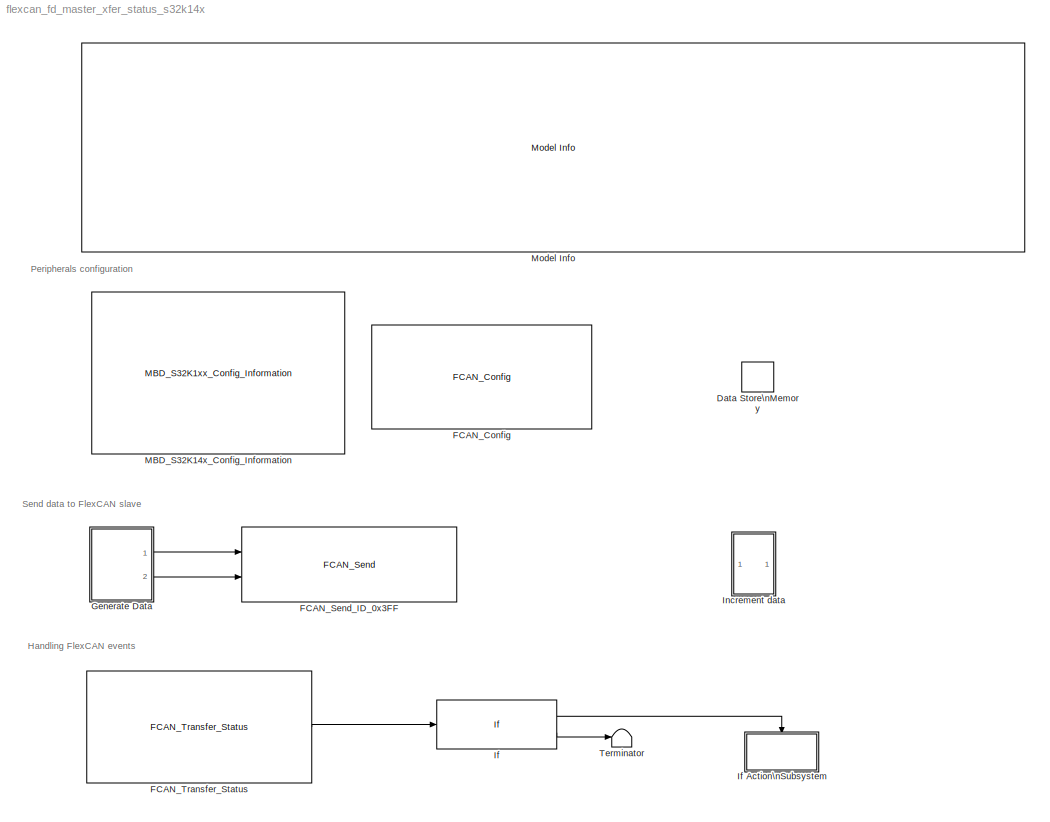
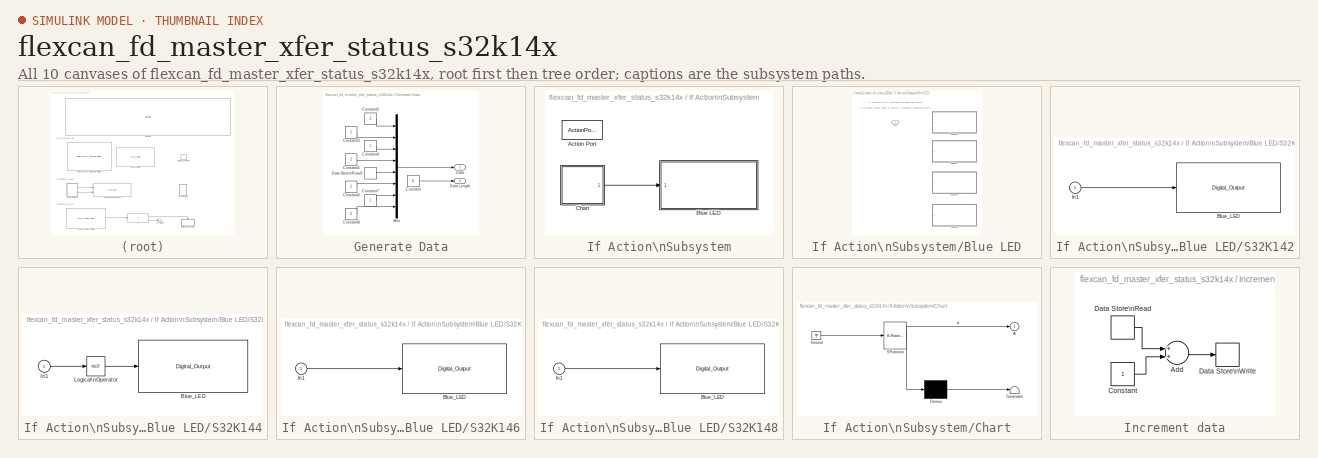
[diagram: thumbnail index - all 10 canvases of the model, root first then tree order]
MODEL flexcan_fd_master_xfer_status_s32k14x
KIND model
CONFIG InitFcn = mbd_s32k_consistency_checks(bdroot(gcs));
CONFIG PreLoadFcn = mbd_s32k_examples_preload_cbk;
BLOCK [DataStoreMemory] Data Store\nMemory
  DataStoreName = data
  OutDataTypeStr = uint8
  ReadBeforeWriteMsg = warning
  SID = 120
  ShowAdditionalParam = off
  WriteAfterReadMsg = warning
  WriteAfterWriteMsg = warning
BLOCK [Reference] FCAN_Config  REF=mbd_s32k1xx_ec_toolbox/Communication Blocks/CAN Blocks/FCAN_Config
  Ports = []
  Priority = 1
  SID = 27
  SourceBlock = mbd_s32k1xx_ec_toolbox/Communication Blocks/CAN Blocks/FCAN_Config
  SourceType = fcan_s32k_config
  bitrate = 500
  bitrate_adv_opts = off
  can_cbt_presdiv = 3
  can_cbt_propseg = 27
  can_cbt_pseg1 = 5
  can_cbt_pseg2 = 5
  can_cbt_rjw = 3
  can_clk_src = Peripheral clock
  can_fd_enable = on
  can_fifo_id_filter = {'0x0', '0x0', '0x0', '0x0', '0x0', '0x0', '0x0', '0x0'}
  can_fifo_id_filter_extended = off
  can_fifo_id_filter_remote = off
  can_fifo_id_format = A
  can_idfilter_extendedid = off
  can_idfilter_id1 = 0
  can_idfilter_id2 = 0
  can_idfilter_remoteframe = off
  can_idfilter_type = Match exact
  can_instance = 0
  can_match_timeout = 1
  can_max_num_mb = 16
  can_mode = Normal mode
  can_multiple_matches_en = off
  can_num_id_filters = 8
  can_num_matches = 1
  can_payload = 8
  can_payloadfilter_dlchigh = 0
  can_payloadfilter_dlclow = 0
  can_payloadfilter_enable = off
  can_payloadfilter_payload1_b0 = 0
  can_payloadfilter_payload1_b1 = 0
  can_payloadfilter_payload1_b2 = 0
  can_payloadfilter_payload1_b3 = 0
  can_payloadfilter_payload1_b4 = 0
  can_payloadfilter_payload1_b5 = 0
  can_payloadfilter_payload1_b6 = 0
  can_payloadfilter_payload1_b7 = 0
  can_payloadfilter_payload2_b0 = 0
  can_payloadfilter_payload2_b1 = 0
  can_payloadfilter_payload2_b2 = 0
  can_payloadfilter_payload2_b3 = 0
  can_payloadfilter_payload2_b4 = 0
  can_payloadfilter_payload2_b5 = 0
  can_payloadfilter_payload2_b6 = 0
  can_payloadfilter_payload2_b7 = 0
  can_payloadfilter_type = Match exact
  can_pn_enable = off
  can_presdiv = 7
  can_propseg = 7
  can_pseg1 = 6
  can_pseg2 = 3
  can_rjw = 3
  can_rx = PTE4: [CAN0_RX | CAN Rx channel]
  can_rxfifo_enable = off
  can_timeout_en = off
  can_tx = PTE5: [CAN0_TX | CAN Tx Channel]
  can_wakeup_match = off
  can_wakeup_timeout = off
  show_adv_opts = on
BLOCK [Reference] FCAN_Send_ID_0x3FF  REF=mbd_s32k1xx_ec_toolbox/Communication Blocks/CAN Blocks/FCAN_Send
  Ports = [2]
  Priority = 2
  SID = 28
  SourceBlock = mbd_s32k1xx_ec_toolbox/Communication Blocks/CAN Blocks/FCAN_Send
  SourceType = fcan_s32k_send
  can_enable_brs = off
  can_extended_id = off
  can_fd_enable = on
  can_fd_padding = 0
  can_id = 3FF
  can_instance = 0
  can_is_remote = off
  can_mb_idx = 15
  can_mode = Non-blocking
  can_timeout_ms = 0
  show_adv_opts = on
BLOCK [Reference] FCAN_Transfer_Status  REF=mbd_s32k1xx_ec_toolbox/Communication Blocks/CAN Blocks/FCAN_Transfer_Status
  Ports = [0, 1]
  SID = 54
  SourceBlock = mbd_s32k1xx_ec_toolbox/Communication Blocks/CAN Blocks/FCAN_Transfer_Status
  SourceType = fcan_s32k_transfer_status
  can_instance = 0
  can_mb_idx = 15
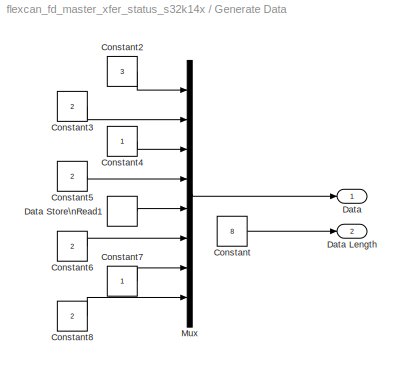
BLOCK [SubSystem] Generate Data
  Ports = [0, 2]
  RequestExecContextInheritance = off
  SID = 30
  Variant = off
BLOCK [Constant] Generate Data/Constant
  OutDataTypeStr = uint8
  SID = 31
  Value = 8
BLOCK [Constant] Generate Data/Constant2
  OutDataTypeStr = uint8
  SID = 32
  Value = 3
BLOCK [Constant] Generate Data/Constant3
  OutDataTypeStr = uint8
  SID = 33
  Value = 2
BLOCK [Constant] Generate Data/Constant4
  OutDataTypeStr = uint8
  SID = 34
BLOCK [Constant] Generate Data/Constant5
  OutDataTypeStr = uint8
  SID = 35
  Value = 2
BLOCK [Constant] Generate Data/Constant6
  OutDataTypeStr = uint8
  SID = 36
  Value = 2
BLOCK [Constant] Generate Data/Constant7
  OutDataTypeStr = uint8
  SID = 37
BLOCK [Constant] Generate Data/Constant8
  OutDataTypeStr = uint8
  SID = 38
  Value = 2
BLOCK [Outport] Generate Data/Data
  IconDisplay = Port number
  SID = 41
BLOCK [Outport] Generate Data/Data Length
  IconDisplay = Port number
  Port = 2
  SID = 42
BLOCK [DataStoreRead] Generate Data/Data Store\nRead1
  DataStoreName = data
  Ports = [0, 1]
  SID = 119
BLOCK [Mux] Generate Data/Mux
  DisplayOption = bar
  Inputs = 8
  Ports = [8, 1]
  SID = 40
BLOCK [If] If
  IfExpression = u1 == 1
  Ports = [1, 2]
  SID = 55
BLOCK [SubSystem] If Action\nSubsystem
  Ports = [0, 0, 0, 0, 0, 0, 0, 1]
  RequestExecContextInheritance = off
  SID = 60
  TreatAsAtomicUnit = on
  Variant = off
BLOCK [ActionPort] If Action\nSubsystem/Action Port
  SID = 62
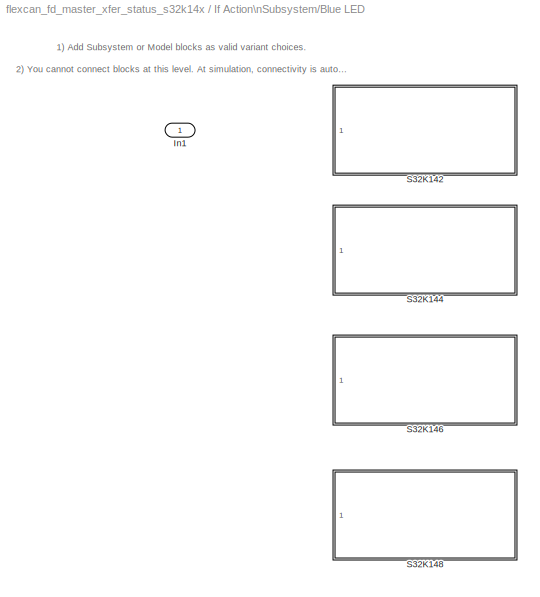
BLOCK [SubSystem] If Action\nSubsystem/Blue LED
  Ports = [1]
  RequestExecContextInheritance = off
  SID = 103
  Variant = on
BLOCK [Inport] If Action\nSubsystem/Blue LED/In1
  IconDisplay = Port number
  SID = 104
BLOCK [SubSystem] If Action\nSubsystem/Blue LED/S32K142
  Ports = [1]
  RequestExecContextInheritance = off
  SID = 105
  Variant = off
  VariantControl = VSS_S32k142
BLOCK [Reference] If Action\nSubsystem/Blue LED/S32K142/Blue_LED  REF=mbd_s32k1xx_ec_toolbox/GPIO Blocks/Digital_Output
  Ports = [1]
  SID = 107
  SourceBlock = mbd_s32k1xx_ec_toolbox/GPIO Blocks/Digital_Output
  SourceType = gpio_s32k_output
  drive_strength = Low
  gpio_pin = PTD0: [PTD0 | Port D I/O]
  init_val = Low
BLOCK [Inport] If Action\nSubsystem/Blue LED/S32K142/In1
  IconDisplay = Port number
  SID = 106
BLOCK [SubSystem] If Action\nSubsystem/Blue LED/S32K144
  Ports = [1]
  RequestExecContextInheritance = off
  SID = 108
  Variant = off
  VariantControl = VSS_S32k144
BLOCK [Reference] If Action\nSubsystem/Blue LED/S32K144/Blue_LED  REF=mbd_s32k1xx_ec_toolbox/GPIO Blocks/Digital_Output
  Ports = [1]
  SID = 110
  SourceBlock = mbd_s32k1xx_ec_toolbox/GPIO Blocks/Digital_Output
  SourceType = gpio_s32k_output
  drive_strength = Low
  gpio_pin = PTD0: [PTD0 | Port D I/O]
  init_val = Low
BLOCK [Inport] If Action\nSubsystem/Blue LED/S32K144/In1
  IconDisplay = Port number
  SID = 109
BLOCK [Logic] If Action\nSubsystem/Blue LED/S32K144/Logical\nOperator
  AllPortsSameDT = off
  Operator = NOT
  OutDataTypeStr = boolean
  Ports = [1, 1]
  SID = 111
BLOCK [SubSystem] If Action\nSubsystem/Blue LED/S32K146
  Ports = [1]
  RequestExecContextInheritance = off
  SID = 112
  Variant = off
  VariantControl = VSS_S32k146
BLOCK [Reference] If Action\nSubsystem/Blue LED/S32K146/Blue_LED  REF=mbd_s32k1xx_ec_toolbox/GPIO Blocks/Digital_Output
  Ports = [1]
  SID = 114
  SourceBlock = mbd_s32k1xx_ec_toolbox/GPIO Blocks/Digital_Output
  SourceType = gpio_s32k_output
  drive_strength = Low
  gpio_pin = PTD0: [PTD0 | Port D I/O]
  init_val = Low
BLOCK [Inport] If Action\nSubsystem/Blue LED/S32K146/In1
  IconDisplay = Port number
  SID = 113
BLOCK [SubSystem] If Action\nSubsystem/Blue LED/S32K148
  Ports = [1]
  RequestExecContextInheritance = off
  SID = 115
  Variant = off
  VariantControl = VSS_S32k148
BLOCK [Reference] If Action\nSubsystem/Blue LED/S32K148/Blue_LED  REF=mbd_s32k1xx_ec_toolbox/GPIO Blocks/Digital_Output
  Ports = [1]
  SID = 117
  SourceBlock = mbd_s32k1xx_ec_toolbox/GPIO Blocks/Digital_Output
  SourceType = gpio_s32k_output
  drive_strength = Low
  gpio_pin = PTE23: [PTE23 | Port E I/O]
  init_val = Low
BLOCK [Inport] If Action\nSubsystem/Blue LED/S32K148/In1
  IconDisplay = Port number
  SID = 116
BLOCK [SubSystem] If Action\nSubsystem/Chart
  ErrorFcn = Stateflow.Translate.translate
  PermitHierarchicalResolution = ExplicitOnly
  Ports = [0, 1]
  RequestExecContextInheritance = off
  SFBlockType = Chart
  SID = 65
  TreatAsAtomicUnit = on
  Variant = off
BLOCK [Outport] If Action\nSubsystem/Chart/ A
  IconDisplay = Port number
  SID = 65::6
BLOCK [Demux] If Action\nSubsystem/Chart/ Demux 
  Outputs = 1
  Ports = [1, 1]
  SID = 65::44
BLOCK [Ground] If Action\nSubsystem/Chart/ Ground 
  SID = 65::46
BLOCK [S-Function] If Action\nSubsystem/Chart/ SFunction 
  EnableBusSupport = off
  FunctionName = sf_sfun
  PortCounts = [1 2]
  Ports = [1, 2]
  SFcnIsStateOwnerBlock = off
  SFunctionDeploymentMode = off
  SID = 65::43
  Tag = Stateflow S-Function flexcan_fd_master_xfer_status_s32k14x 5
BLOCK [Terminator] If Action\nSubsystem/Chart/ Terminator 
  SID = 65::45
BLOCK [SubSystem] Increment data
  Ports = []
  RequestExecContextInheritance = off
  SID = 121
  Variant = off
BLOCK [Sum] Increment data/Add
  InputSameDT = off
  OutDataTypeStr = Inherit: Inherit via internal rule
  Ports = [2, 1]
  SID = 122
  SaturateOnIntegerOverflow = off
BLOCK [Constant] Increment data/Constant
  OutDataTypeStr = uint8
  SID = 123
BLOCK [DataStoreRead] Increment data/Data Store\nRead
  DataStoreName = data
  Ports = [0, 1]
  SID = 124
BLOCK [DataStoreWrite] Increment data/Data Store\nWrite
  DataStoreName = data
  Ports = [1]
  SID = 125
BLOCK [Reference] MBD_S32K14x_Config_Information  REF=mbd_s32k1xx_ec_toolbox/MBD_S32K1xx_Config_Information
  ADC_PcrCheckEnDis = on
  AMMCLIB_PcrCheckEnDis = on
  CMP_PcrCheckEnDis = on
  CSEc_PcrCheckEnDis = on
  ConfigParams_PcrCheckEnDis = on
  FM_PcrCheckEnDis = on
  FTM_Dual_Edge_Inputs_PcrCheckEnDis = on
  FTM_Hall_Sensor_Inputs_PcrCheckEnDis = on
  FTM_Input_Edge_Inputs_PcrCheckEnDis = on
  FTM_PWM_PcrCheckEnDis = on
  FTM_Quadrature_Inputs_PcrCheckEnDis = on
  FlexCAN_PcrCheckEnDis = on
  FlexIO_PcrCheckEnDis = on
  GPIO_InputPcrCheckEnDis = on
  GPIO_OutputPcrCheckEnDis = on
  LIN_PcrCheckEnDis = on
  LPI2C_PcrCheckEnDis = on
  LPSPI_PcrCheckEnDis = on
  LPTMR_PcrCheckEnDis = on
  LPUART_PcrCheckEnDis = on
  ModelRef_PcrCheckEnDis = on
  PDB0_PcrCheckEnDis = on
  PIT_PcrCheckEnDis = on
  Ports = []
  Profile_PcrCheckEnDis = on
  RTC_PcrCheckEnDis = on
  SBC_PcrCheckEnDis = on
  SID = 43
  SourceBlock = mbd_s32k1xx_ec_toolbox/MBD_S32K1xx_Config_Information
  SourceType = MBDTBX_EC_S32K
  WDOG_PcrCheckEnDis = on
  config_params = []
  disp_str = Target : S32K144-64KB_SRAM\nPackage : 100-pin\nSystem clock : 80 MHz\nXTAL clock : External 8 MHz\nCompiler : IAR\nTarget Type : FLASH\nDownload Code after build : off\nStep Tick Interrupt Priority : 15
  ds_import_enable = on
  eDMA_PcrCheckEnDis = on
  gcc_target_assemble_opts = -mcpu=cortex-m4 -mthumb -mfloat-abi=hard -mfpu=fpv4-sp-d16 -g
  gcc_target_compile_opts = -mcpu=cortex-m4 -mthumb -mfloat-abi=hard -mfpu=fpv4-sp-d16 -O1 -g -gstrict-dwarf
  gcc_target_default_lcf = on
  gcc_target_link_opts = -mcpu=cortex-m4 -mthumb -mfloat-abi=hard -mfpu=fpv4-sp-d16
  gcc_target_user_lcf = S32K144_64_flash.ld
  ghs_target_assemble_opts = -cpu=cortexm4f -fpu=vfpv4_d16
  ghs_target_compile_opts = -cpu=cortexm4f -thumb -DARM_MATH_CM4 -fpu=vfpv4_d16 -fsingle -Ogeneral -Wundef -Wimplicit-int -Wshadow -Wtrigraphs --no_commons --gnu_asm -gnu99 -gdwarf-2 -G
  ghs_target_default_lcf = off
  ghs_target_link_opts = -cpu=cortexm4f -thumb -fpu=vfpv4_d16
  ghs_target_user_lcf = S32K144_64_flash.ld
  iar_target_assemble_opts = --cpu Cortex-M4F --thumb --fpu VFPv4_sp
  iar_target_compile_opts = --cpu=Cortex-M4F --thumb --fpu=VFPv4_sp -Ol -e --debug --dlib_config normal
  iar_target_default_lcf = off
  iar_target_link_opts = --no_exceptions --vfe --inline
  iar_target_user_lcf = S32K144_64_flash.icf
  mbdt_ver = 0
  mcu_steptick_prio = 15
  mcu_steptick_timer = LPIT Channel 0
  mcu_system_clock_freq = 80
  mcu_target_name = S32K144
  mcu_target_package = 100-LQFP
  mcu_target_sram_size = 64KB
  mcu_xtal_freq = External 8
  pil_download_enable = off
  pil_download_rate = 57600
  pil_opensda_drive = Custom
  pil_opensda_drive_custom = D
  pil_uart_instance = 0
  pil_uart_rx = PTA2: [LPUART0_RX | Receive]
  pil_uart_tx = PTA3: [LPUART0_TX | Transmit]
  rbl_com_port = Custom
  rbl_com_port_custom = COM1
  rbl_download_enable = off
  rbl_download_interface = OpenSDA
  rbl_restart_request = off
  rbl_start_delay = 5000000
  target_compiler = GCC
  target_memory = FLASH
BLOCK [Reference] Model Info  REF=simulink/Model-Wide\nUtilities/Model Info
  DisplayStringWithTags = Model Name: %<ModelName>\n\nDescription: %<Description>
  Frame = off
  HorizontalTextAlignment = Left
  LeftAlignmentValue = 0.02
  MaskDisplayString = Model Name: flexcan_fd_master_xfer_status_s32k14x\\n\\nDescription: This model tests FlexCAN communication using CAN with Flexible Data-Rate.\\nThe FlexCAN Master sends on each step a message with ID 0x3FF to the slave.\\nWhen a transfer using the specified MB is in progress the Blue LED is toggled.\\n\\nHW prerequisite:\\n- S32K142EVB-Q100 / S32K144EVB-Q100 / S32K146EVB-Q144 / S32K148EVB-Q144\\n-...<+261ch>
  Ports = []
  SID = 70
  SourceBlock = simulink/Model-Wide\nUtilities/Model Info
  SourceProductBaseCode = SL
  SourceProductName = Simulink
  SourceType = CMBlock
BLOCK [Terminator] Terminator
  SID = 66
ANNOTATION (root): Handling FlexCAN events
ANNOTATION (root): Peripherals configuration
ANNOTATION (root): Send data to FlexCAN slave
ANNOTATION If Action\nSubsystem/Blue LED: \n \n 1) Add Subsystem or Model blocks as valid variant choices. \n 2) You cannot connect blocks at this level. At simulation, connectivity is automatically \n determined, based on the active variant and port name matching.
LINE FCAN_Transfer_Status:1 -> If:1
LINE Generate Data/Constant2:1 -> Generate Data/Mux:1
LINE Generate Data/Constant3:1 -> Generate Data/Mux:2
LINE Generate Data/Constant4:1 -> Generate Data/Mux:3
LINE Generate Data/Constant5:1 -> Generate Data/Mux:4
LINE Generate Data/Constant6:1 -> Generate Data/Mux:6
LINE Generate Data/Constant7:1 -> Generate Data/Mux:7
LINE Generate Data/Constant8:1 -> Generate Data/Mux:8
LINE Generate Data/Constant:1 -> Generate Data/Data Length:1
LINE Generate Data/Data Store\nRead1:1 -> Generate Data/Mux:5
LINE Generate Data/Mux:1 -> Generate Data/Data:1
LINE Generate Data:1 -> FCAN_Send_ID_0x3FF:1
LINE Generate Data:2 -> FCAN_Send_ID_0x3FF:2
LINE If Action\nSubsystem/Blue LED/S32K142/In1:1 -> If Action\nSubsystem/Blue LED/S32K142/Blue_LED:1
LINE If Action\nSubsystem/Blue LED/S32K144/In1:1 -> If Action\nSubsystem/Blue LED/S32K144/Logical\nOperator:1
LINE If Action\nSubsystem/Blue LED/S32K144/Logical\nOperator:1 -> If Action\nSubsystem/Blue LED/S32K144/Blue_LED:1
LINE If Action\nSubsystem/Blue LED/S32K146/In1:1 -> If Action\nSubsystem/Blue LED/S32K146/Blue_LED:1
LINE If Action\nSubsystem/Blue LED/S32K148/In1:1 -> If Action\nSubsystem/Blue LED/S32K148/Blue_LED:1
LINE If Action\nSubsystem/Chart/ Demux :1 -> If Action\nSubsystem/Chart/ Terminator :1
LINE If Action\nSubsystem/Chart/ Ground :1 -> If Action\nSubsystem/Chart/ SFunction :1
LINE If Action\nSubsystem/Chart/ SFunction :1 -> If Action\nSubsystem/Chart/ Demux :1
LINE If Action\nSubsystem/Chart/ SFunction :2 -> If Action\nSubsystem/Chart/ A:1
LINE If Action\nSubsystem/Chart:1 -> If Action\nSubsystem/Blue LED:1
LINE If:1 -> If Action\nSubsystem:ifaction
LINE If:2 -> Terminator:1
LINE Increment data/Add:1 -> Increment data/Data Store\nWrite:1
LINE Increment data/Constant:1 -> Increment data/Add:2
LINE Increment data/Data Store\nRead:1 -> Increment data/Add:1
CHART If Action\nSubsystem/Chart states=2 transitions=3
  STATE_LABEL 'A'
  STATE_LABEL 'A1'
